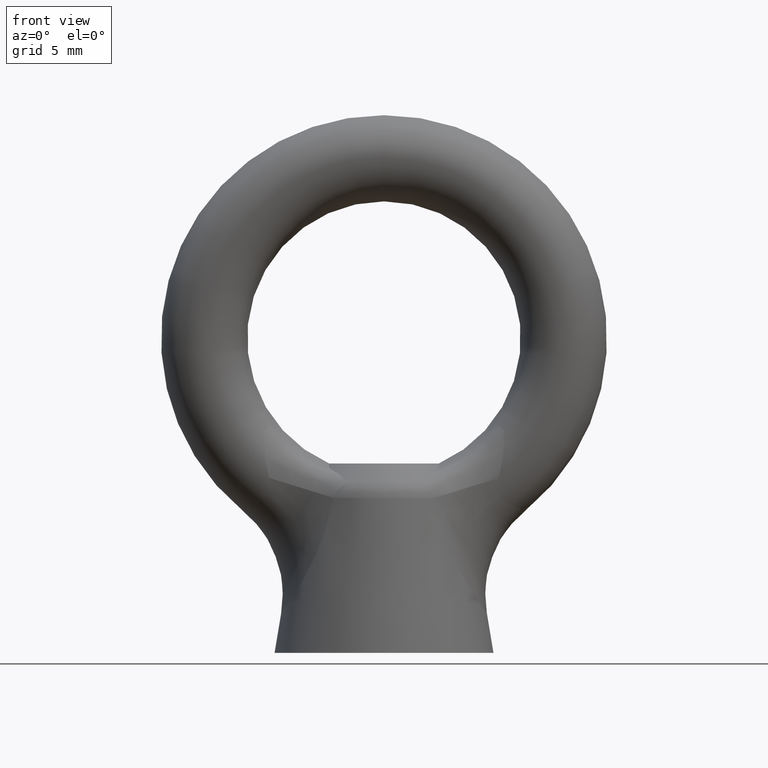
[diagram: clean part render]
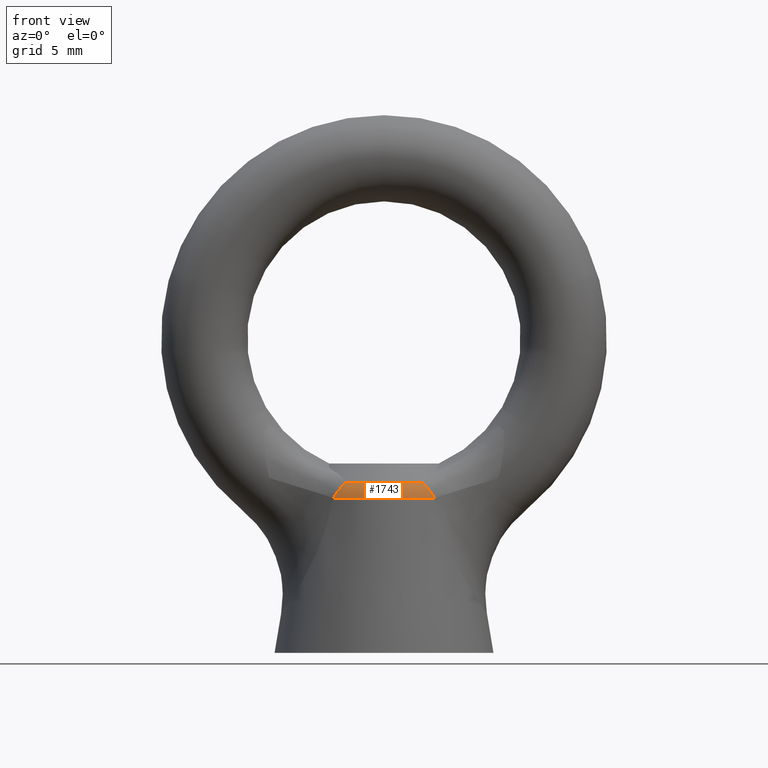
[diagram: same view with one face highlighted and labeled with its STEP entity id]
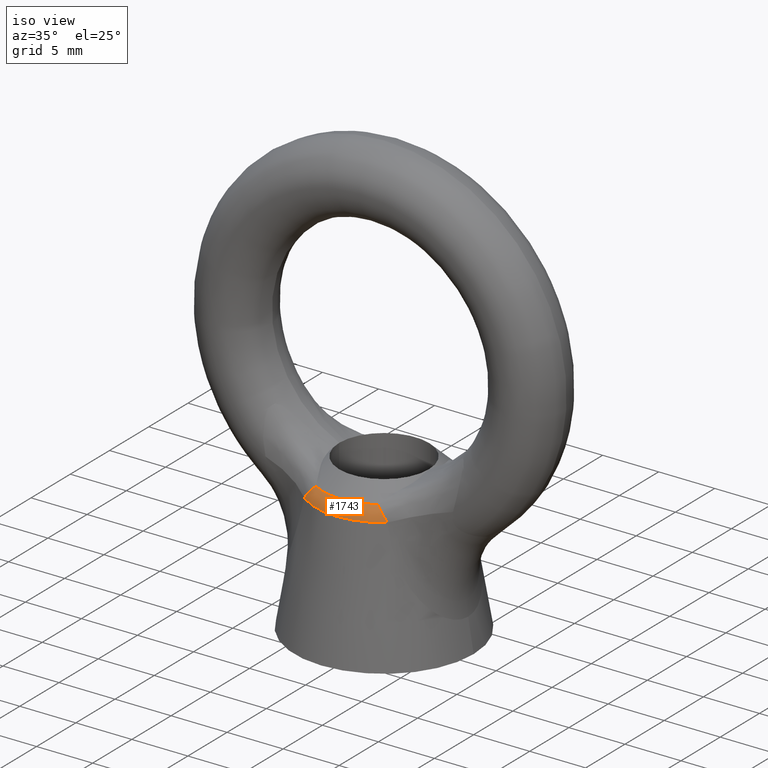
[diagram: same view with one face highlighted and labeled with its STEP entity id]
A machine part, front view. The second image highlights one B-rep face of the part: STEP entity #1743.
A second angle (iso view) of the same face is appended — the face is thin or edge-on in the first view.
In plain terms, the highlighted toroidal blend (fillet) surface has major radius 4.1404 mm and minor (blend) radius 2 mm.
Its self-contained STEP definition (entity closure, byte-faithful):
#94 = CARTESIAN_POINT ( 'NONE',  ( 3.700336161198615000, -4.866101749965079800, -11.67933981912971900 ) ) ;
#1685 = VERTEX_POINT ( 'NONE', #94 ) ;
#1743 = ADVANCED_FACE ( 'NONE', ( #3645 ), #3616, .T. ) ;
#1744 = EDGE_LOOP ( 'NONE', ( #1745, #1758, #1760, #1761 ) ) ;
#1745 = ORIENTED_EDGE ( 'NONE', *, *, #1799, .F. ) ;
#1758 = ORIENTED_EDGE ( 'NONE', *, *, #1759, .T. ) ;
#1759 = EDGE_CURVE ( 'NONE', #1685, #1781, #3722, .T. ) ;
#1760 = ORIENTED_EDGE ( 'NONE', *, *, #1779, .F. ) ;
#1761 = ORIENTED_EDGE ( 'NONE', *, *, #1762, .T. ) ;
#1762 = EDGE_CURVE ( 'NONE', #1780, #1801, #3716, .T. ) ;
#1779 = EDGE_CURVE ( 'NONE', #1780, #1781, #5938, .T. ) ;
#1780 = VERTEX_POINT ( 'NONE', #5937 ) ;
#1781 = VERTEX_POINT ( 'NONE', #5916 ) ;
#1799 = EDGE_CURVE ( 'NONE', #1685, #1801, #5867, .T. ) ;
#1801 = VERTEX_POINT ( 'NONE', #5868 ) ;
#3612 = DIRECTION ( 'NONE',  ( 1.000000000000000000, 0.0000000000000000000, 0.0000000000000000000 ) ) ;
#3613 = DIRECTION ( 'NONE',  ( 0.0000000000000000000, 0.0000000000000000000, 1.000000000000000000 ) ) ;
#3614 = CARTESIAN_POINT ( 'NONE',  ( 0.0000000000000000000, 0.0000000000000000000, -12.00813869803213900 ) ) ;
#3615 = AXIS2_PLACEMENT_3D ( 'NONE', #3614, #3613, #3612 ) ;
#3616 = TOROIDAL_SURFACE ( 'NONE', #3615, 4.140430272900425200, 2.000000000000000000 ) ;
#3645 = FACE_OUTER_BOUND ( 'NONE', #1744, .T. ) ;
#3710 = CARTESIAN_POINT ( 'NONE',  ( -3.700336161198615000, -4.866101749965079800, -11.67933981912971900 ) ) ;
#3711 = CARTESIAN_POINT ( 'NONE',  ( -3.581410207178590300, -4.910522725489981300, -11.45957825694189400 ) ) ;
#3712 = CARTESIAN_POINT ( 'NONE',  ( -3.440001972233256700, -4.924436587858958900, -11.25316116847663200 ) ) ;
#3713 = CARTESIAN_POINT ( 'NONE',  ( -3.118281890104266800, -4.885806854452692200, -10.86256646858765200 ) ) ;
#3714 = CARTESIAN_POINT ( 'NONE',  ( -2.945748445060025300, -4.834571572632192700, -10.68824598369547200 ) ) ;
#3715 = CARTESIAN_POINT ( 'NONE',  ( -2.763977821056570400, -4.746338438235320600, -10.53437818526985800 ) ) ;
#3716 = B_SPLINE_CURVE_WITH_KNOTS ( 'NONE', 3,
 ( #3715, #3714, #3713, #3712, #3711, #3710 ),
 .UNSPECIFIED., .F., .F.,
 ( 4, 2, 4 ),
 ( 0.0000000000000000000, 0.0007514278284817539400, 0.001502855656963507900 ),
 .UNSPECIFIED. ) ;
#3718 = CARTESIAN_POINT ( 'NONE',  ( 2.763977821056525100, -4.746338438235340200, -10.53437818526985800 ) ) ;
#3719 = CARTESIAN_POINT ( 'NONE',  ( 3.126685778806462100, -4.922400220266477600, -10.84140840666230200 ) ) ;
#3720 = CARTESIAN_POINT ( 'NONE',  ( 3.462995508731946200, -4.954752737894184900, -11.24076143658447100 ) ) ;
#3721 = CARTESIAN_POINT ( 'NONE',  ( 3.700336161198615000, -4.866101749965079800, -11.67933981912971900 ) ) ;
#3722 = B_SPLINE_CURVE_WITH_KNOTS ( 'NONE', 3,
 ( #3721, #3720, #3719, #3718 ),
 .UNSPECIFIED., .F., .F.,
 ( 4, 4 ),
 ( 2.168404344971008900E-018, 0.001518787844178374500 ),
 .UNSPECIFIED. ) ;
#5863 = DIRECTION ( 'NONE',  ( 1.000000000000000000, 0.0000000000000000000, 0.0000000000000000000 ) ) ;
#5864 = DIRECTION ( 'NONE',  ( 0.0000000000000000000, 0.0000000000000000000, -1.000000000000000000 ) ) ;
#5865 = CARTESIAN_POINT ( 'NONE',  ( 0.0000000000000000000, 0.0000000000000000000, -11.67933981912971900 ) ) ;
#5866 = AXIS2_PLACEMENT_3D ( 'NONE', #5865, #5864, #5863 ) ;
#5867 = CIRCLE ( 'NONE', #5866, 6.113217969849210400 ) ;
#5868 = CARTESIAN_POINT ( 'NONE',  ( -3.700336161198615000, -4.866101749965079800, -11.67933981912971900 ) ) ;
#5916 = CARTESIAN_POINT ( 'NONE',  ( 2.763977821056525100, -4.746338438235340200, -10.53437818526985800 ) ) ;
#5933 = DIRECTION ( 'NONE',  ( 1.000000000000000000, 0.0000000000000000000, 0.0000000000000000000 ) ) ;
#5934 = DIRECTION ( 'NONE',  ( 0.0000000000000000000, 0.0000000000000000000, 1.000000000000000000 ) ) ;
#5935 = CARTESIAN_POINT ( 'NONE',  ( 0.0000000000000000000, 0.0000000000000000000, -10.53437818526985800 ) ) ;
#5936 = AXIS2_PLACEMENT_3D ( 'NONE', #5935, #5934, #5933 ) ;
#5937 = CARTESIAN_POINT ( 'NONE',  ( -2.763977821056570400, -4.746338438235320600, -10.53437818526985800 ) ) ;
#5938 = CIRCLE ( 'NONE', #5936, 5.492476851618279800 ) ;